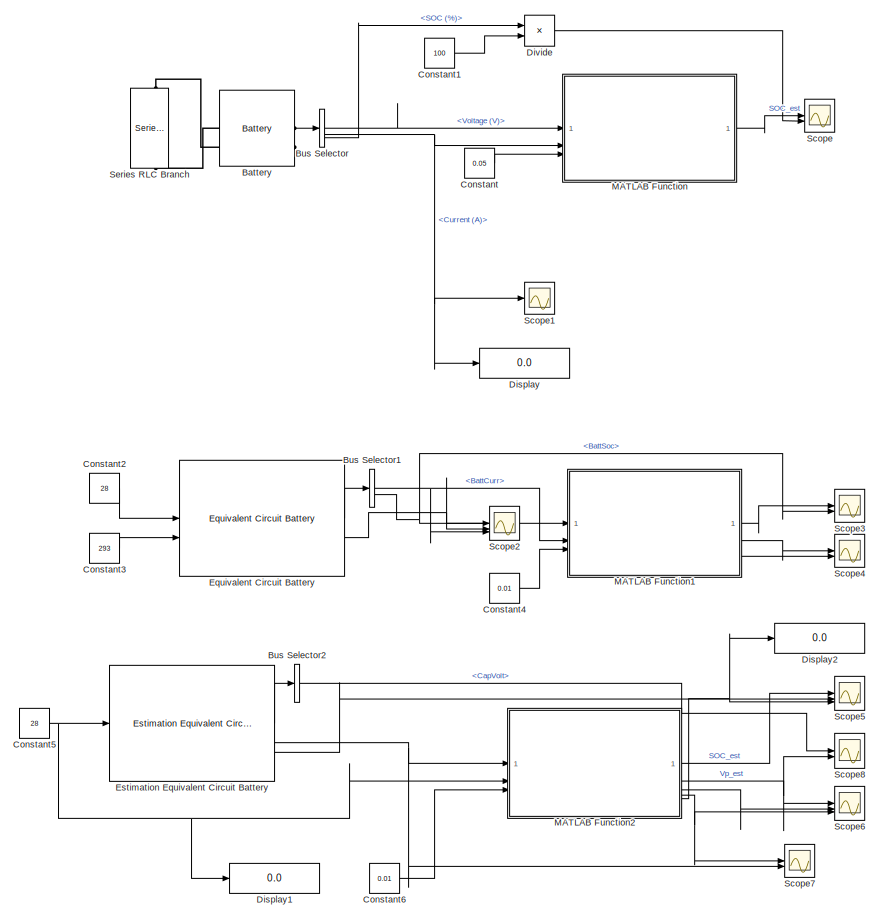
[diagram: root canvas - part 1/2, full width, top band]
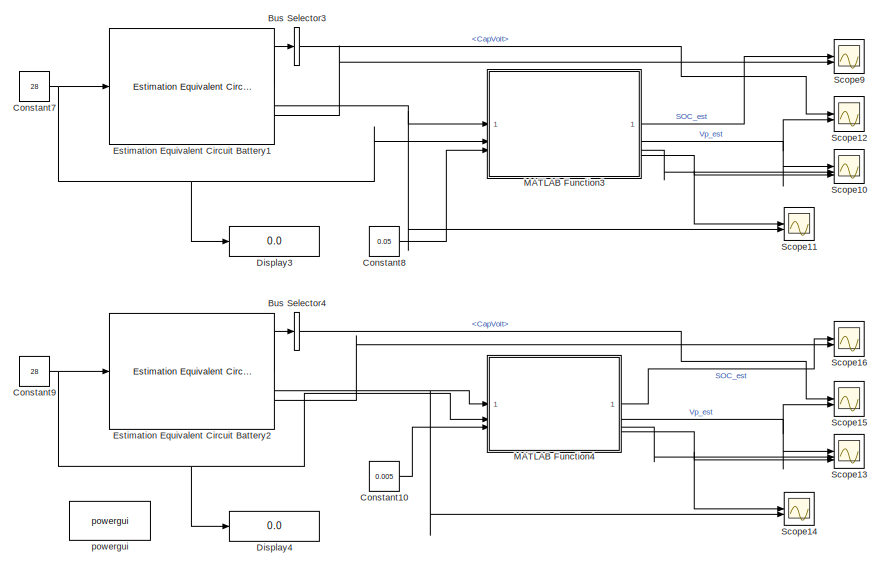
[diagram: root canvas - part 2/2, full width, bottom band]
MODEL slx_6ea71eb47ffe
KIND model
CONFIG AbsTol = auto
CONFIG EnableMultiTasking = off
CONFIG FixedStep = auto
CONFIG MaxStep = auto
CONFIG MinStep = auto
CONFIG RelTol = 1e-3
CONFIG SampleTimeConstraint = Unconstrained
CONFIG SolverName = FixedStepAuto
CONFIG StartTime = 0.0
CONFIG StopTime = 3600
BLOCK [Reference] Battery  REF=spsBatteryLib/Battery
  Commented = on
  LibrarySourceBlock = electricdrivelib/Extra Sources/Battery
  NameLocation = top
  SourceBlock = spsBatteryLib/Battery
  SourceType = Battery
BLOCK [BusSelector] Bus Selector
  Commented = on
  OutputSignals = Voltage (V),Current (A),SOC (%)
BLOCK [BusSelector] Bus Selector1
  Commented = on
  OutputSignals = BattCurr,BattSoc,BattVolt
BLOCK [BusSelector] Bus Selector2
  Commented = on
  OutputSignals = CapVolt
BLOCK [BusSelector] Bus Selector3
  Commented = on
  OutputSignals = CapVolt
BLOCK [BusSelector] Bus Selector4
  OutputSignals = CapVolt
BLOCK [Constant] Constant
  Commented = on
  Value = 0.05
BLOCK [Constant] Constant1
  Commented = on
  Value = 100
BLOCK [Constant] Constant10
  Value = 0.005
BLOCK [Constant] Constant2
  Commented = on
  Value = 28
BLOCK [Constant] Constant3
  Commented = on
  Value = 293
BLOCK [Constant] Constant4
  Commented = on
  Value = 0.01
BLOCK [Constant] Constant5
  Commented = on
  Value = 28
BLOCK [Constant] Constant6
  Commented = on
  Value = 0.01
BLOCK [Constant] Constant7
  Commented = on
  Value = 28
BLOCK [Constant] Constant8
  Commented = on
  Value = 0.05
BLOCK [Constant] Constant9
  Value = 28
BLOCK [Display] Display
  Commented = on
  Decimation = 1
BLOCK [Display] Display1
  Commented = on
  Decimation = 1
BLOCK [Display] Display2
  Commented = on
  Decimation = 1
BLOCK [Display] Display3
  Commented = on
  Decimation = 1
BLOCK [Display] Display4
  Decimation = 1
BLOCK [Product] Divide
  Commented = on
  Inputs = */
BLOCK [Reference] Equivalent Circuit Battery  REF=autolibrcnetworksystem/Equivalent Circuit Battery
  Commented = on
  SourceBlock = autolibrcnetworksystem/Equivalent Circuit Battery
  SourceType = Equivalent Circuit Battery
BLOCK [Reference] Estimation Equivalent Circuit Battery  REF=autolibrcnetworksystem/Estimation Equivalent Circuit Battery
  Commented = on
  SourceBlock = autolibrcnetworksystem/Estimation Equivalent Circuit Battery
  SourceType = Estimation Equivalent Circuit Battery
BLOCK [Reference] Estimation Equivalent Circuit Battery1  REF=autolibrcnetworksystem/Estimation Equivalent Circuit Battery
  Commented = on
  SourceBlock = autolibrcnetworksystem/Estimation Equivalent Circuit Battery
  SourceType = Estimation Equivalent Circuit Battery
BLOCK [Reference] Estimation Equivalent Circuit Battery2  REF=autolibrcnetworksystem/Estimation Equivalent Circuit Battery
  SourceBlock = autolibrcnetworksystem/Estimation Equivalent Circuit Battery
  SourceType = Estimation Equivalent Circuit Battery
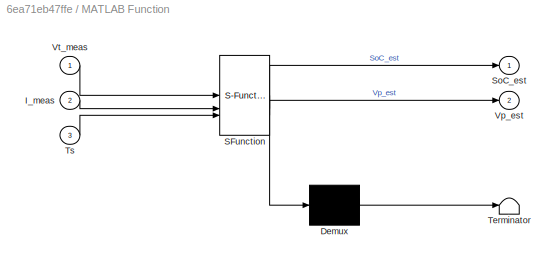
BLOCK [SubSystem] MATLAB Function
  Commented = on
  ErrorFcn = Stateflow.Translate.translate
  PermitHierarchicalResolution = ExplicitOnly
  SFBlockType = MATLAB Function
  TreatAsAtomicUnit = on
BLOCK [Demux] MATLAB Function/ Demux 
  Outputs = 1
BLOCK [S-Function] MATLAB Function/ SFunction 
  EnableBusSupport = off
  FunctionName = sf_sfun
  PortCounts = [3 3]
  SFcnIsStateOwnerBlock = off
  SFunctionDeploymentMode = off
  Tag = Stateflow S-Function 2
BLOCK [Terminator] MATLAB Function/ Terminator 
BLOCK [Inport] MATLAB Function/I_meas
  Port = 2
BLOCK [Outport] MATLAB Function/SoC_est
BLOCK [Inport] MATLAB Function/Ts
  Port = 3
BLOCK [Outport] MATLAB Function/Vp_est
  Port = 2
BLOCK [Inport] MATLAB Function/Vt_meas
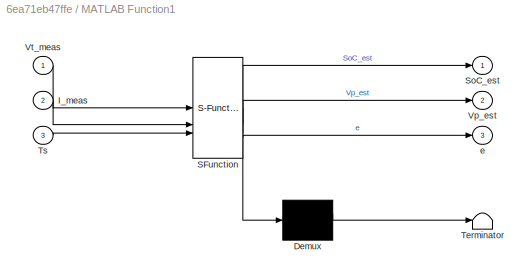
BLOCK [SubSystem] MATLAB Function1
  Commented = on
  ErrorFcn = Stateflow.Translate.translate
  PermitHierarchicalResolution = ExplicitOnly
  SFBlockType = MATLAB Function
  TreatAsAtomicUnit = on
BLOCK [Demux] MATLAB Function1/ Demux 
  Outputs = 1
BLOCK [S-Function] MATLAB Function1/ SFunction 
  EnableBusSupport = on
  FunctionName = sf_sfun
  PortCounts = [3 4]
  SFcnIsStateOwnerBlock = off
  SFunctionDeploymentMode = off
  Tag = Stateflow S-Function 1
BLOCK [Terminator] MATLAB Function1/ Terminator 
BLOCK [Inport] MATLAB Function1/I_meas
  Port = 2
BLOCK [Outport] MATLAB Function1/SoC_est
BLOCK [Inport] MATLAB Function1/Ts
  Port = 3
BLOCK [Outport] MATLAB Function1/Vp_est
  Port = 2
BLOCK [Inport] MATLAB Function1/Vt_meas
BLOCK [Outport] MATLAB Function1/e
  Port = 3
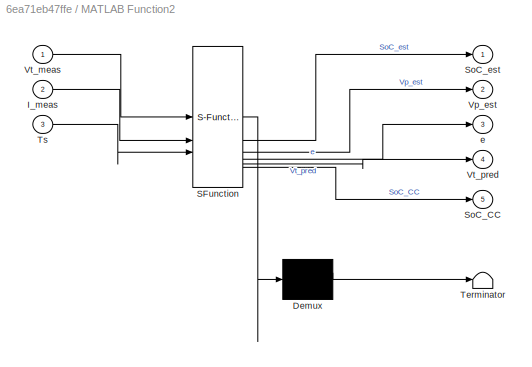
BLOCK [SubSystem] MATLAB Function2
  Commented = on
  ErrorFcn = Stateflow.Translate.translate
  PermitHierarchicalResolution = ExplicitOnly
  SFBlockType = MATLAB Function
  TreatAsAtomicUnit = on
BLOCK [Demux] MATLAB Function2/ Demux 
  Outputs = 1
BLOCK [S-Function] MATLAB Function2/ SFunction 
  EnableBusSupport = on
  FunctionName = sf_sfun
  PortCounts = [3 6]
  SFcnIsStateOwnerBlock = off
  SFunctionDeploymentMode = off
  Tag = Stateflow S-Function 3
BLOCK [Terminator] MATLAB Function2/ Terminator 
BLOCK [Inport] MATLAB Function2/I_meas
  Port = 2
BLOCK [Outport] MATLAB Function2/SoC_CC
  Port = 5
BLOCK [Outport] MATLAB Function2/SoC_est
BLOCK [Inport] MATLAB Function2/Ts
  Port = 3
BLOCK [Outport] MATLAB Function2/Vp_est
  Port = 2
BLOCK [Inport] MATLAB Function2/Vt_meas
BLOCK [Outport] MATLAB Function2/Vt_pred
  Port = 4
BLOCK [Outport] MATLAB Function2/e
  Port = 3
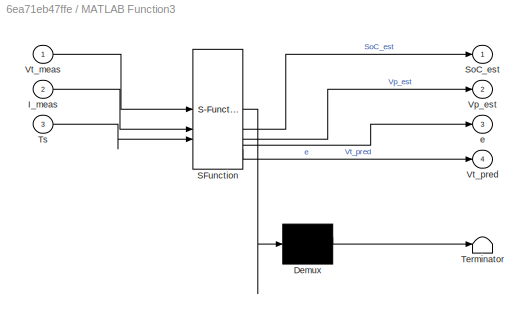
BLOCK [SubSystem] MATLAB Function3
  Commented = on
  ErrorFcn = Stateflow.Translate.translate
  PermitHierarchicalResolution = ExplicitOnly
  SFBlockType = MATLAB Function
  TreatAsAtomicUnit = on
BLOCK [Demux] MATLAB Function3/ Demux 
  Outputs = 1
BLOCK [S-Function] MATLAB Function3/ SFunction 
  EnableBusSupport = on
  FunctionName = sf_sfun
  PortCounts = [3 5]
  SFcnIsStateOwnerBlock = off
  SFunctionDeploymentMode = off
  Tag = Stateflow S-Function 4
BLOCK [Terminator] MATLAB Function3/ Terminator 
BLOCK [Inport] MATLAB Function3/I_meas
  Port = 2
BLOCK [Outport] MATLAB Function3/SoC_est
BLOCK [Inport] MATLAB Function3/Ts
  Port = 3
BLOCK [Outport] MATLAB Function3/Vp_est
  Port = 2
BLOCK [Inport] MATLAB Function3/Vt_meas
BLOCK [Outport] MATLAB Function3/Vt_pred
  Port = 4
BLOCK [Outport] MATLAB Function3/e
  Port = 3
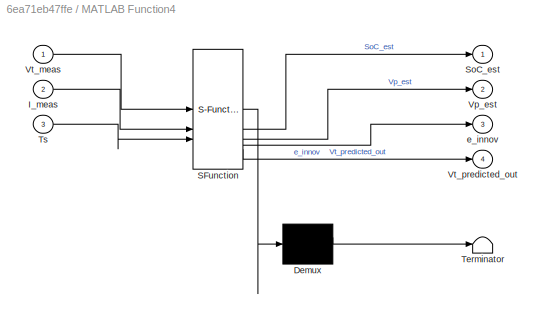
BLOCK [SubSystem] MATLAB Function4
  ErrorFcn = Stateflow.Translate.translate
  PermitHierarchicalResolution = ExplicitOnly
  SFBlockType = MATLAB Function
  TreatAsAtomicUnit = on
BLOCK [Demux] MATLAB Function4/ Demux 
  Outputs = 1
BLOCK [S-Function] MATLAB Function4/ SFunction 
  EnableBusSupport = on
  FunctionName = sf_sfun
  PortCounts = [3 5]
  SFcnIsStateOwnerBlock = off
  SFunctionDeploymentMode = off
  Tag = Stateflow S-Function 5
BLOCK [Terminator] MATLAB Function4/ Terminator 
BLOCK [Inport] MATLAB Function4/I_meas
  Port = 2
BLOCK [Outport] MATLAB Function4/SoC_est
BLOCK [Inport] MATLAB Function4/Ts
  Port = 3
BLOCK [Outport] MATLAB Function4/Vp_est
  Port = 2
BLOCK [Inport] MATLAB Function4/Vt_meas
BLOCK [Outport] MATLAB Function4/Vt_predicted_out
  Port = 4
BLOCK [Outport] MATLAB Function4/e_innov
  Port = 3
BLOCK [Scope] Scope
  Commented = on
  Floating = off
  NumInputPorts = 2
  ScopeSpecificationString = Simulink.scopes.TimeScopeBlockCfg('CurrentConfiguration', extmgr.ConfigurationSet(extmgr.Configuration('Core','General UI',true),extmgr.Configuration('Core','Source UI',true),extmgr.Configuration('Sources','WiredSimulink',true),extmgr.Configuration('Visuals','Time Domain',true,'SerializedDisplays',{struct('MinYLimReal','0.32635','MaxYLimReal','0.90818','YLabelReal','','MinYLimMag','0.32635','MaxYL...<+1370ch>
BLOCK [Scope] Scope1
  Commented = on
  Floating = off
  NumInputPorts = 1
  ScopeSpecificationString = Simulink.scopes.TimeScopeBlockCfg('CurrentConfiguration', extmgr.ConfigurationSet(extmgr.Configuration('Core','General UI',true),extmgr.Configuration('Core','Source UI',true),extmgr.Configuration('Sources','WiredSimulink',true,'DataLoggingVariableName','ScopeData1','DataLoggingSaveFormat','Array','DataLoggingLimitDataPoints',true,'DataLoggingDecimation','1'),extmgr.Configuration('Visuals','Time Do...<+1674ch>
BLOCK [Scope] Scope10
  Commented = on
  Floating = off
  NumInputPorts = 3
  ScopeSpecificationString = Simulink.scopes.TimeScopeBlockCfg('CurrentConfiguration', extmgr.ConfigurationSet(extmgr.Configuration('Core','General UI',true),extmgr.Configuration('Core','Source UI',true),extmgr.Configuration('Sources','WiredSimulink',true,'DataLoggingVariableName','ScopeData1'),extmgr.Configuration('Visuals','Time Domain',true,'SerializedDisplays',{struct('MinYLimReal','0.49045','MaxYLimReal','1.18538','YLabe...<+2739ch>
BLOCK [Scope] Scope11
  Commented = on
  Floating = off
  NumInputPorts = 2
  ScopeSpecificationString = Simulink.scopes.TimeScopeBlockCfg('CurrentConfiguration', extmgr.ConfigurationSet(extmgr.Configuration('Core','General UI',true),extmgr.Configuration('Core','Source UI',true),extmgr.Configuration('Sources','WiredSimulink',true,'DataLoggingVariableName','ScopeData2'),extmgr.Configuration('Visuals','Time Domain',true,'SerializedDisplays',{struct('MinYLimReal','3.21164','MaxYLimReal','4.11748','YLabe...<+1461ch>
BLOCK [Scope] Scope12
  Commented = on
  Floating = off
  NumInputPorts = 2
  ScopeSpecificationString = Simulink.scopes.TimeScopeBlockCfg('CurrentConfiguration', extmgr.ConfigurationSet(extmgr.Configuration('Core','General UI',true),extmgr.Configuration('Core','Source UI',true),extmgr.Configuration('Sources','WiredSimulink',true,'DataLoggingVariableName','ScopeData3'),extmgr.Configuration('Visuals','Time Domain',true,'SerializedDisplays',{struct('MinYLimReal','-0.39175','MaxYLimReal','2.12579','YLab...<+1413ch>
BLOCK [Scope] Scope13
  Floating = off
  NumInputPorts = 3
  ScopeSpecificationString = Simulink.scopes.TimeScopeBlockCfg('CurrentConfiguration', extmgr.ConfigurationSet(extmgr.Configuration('Core','General UI',true),extmgr.Configuration('Core','Source UI',true),extmgr.Configuration('Sources','WiredSimulink',true,'DataLoggingVariableName','ScopeData1'),extmgr.Configuration('Visuals','Time Domain',true,'SerializedDisplays',{struct('MinYLimReal','-0.0168','MaxYLimReal','1.04937','YLabe...<+2756ch>
BLOCK [Scope] Scope14
  Floating = off
  NumInputPorts = 2
  ScopeSpecificationString = Simulink.scopes.TimeScopeBlockCfg('CurrentConfiguration', extmgr.ConfigurationSet(extmgr.Configuration('Core','General UI',true),extmgr.Configuration('Core','Source UI',true),extmgr.Configuration('Sources','WiredSimulink',true,'DataLoggingVariableName','ScopeData2'),extmgr.Configuration('Visuals','Time Domain',true,'SerializedDisplays',{struct('MinYLimReal','2.07603','MaxYLimReal','4.86576','YLabe...<+1469ch>
BLOCK [Scope] Scope15
  Floating = off
  NumInputPorts = 2
  ScopeSpecificationString = Simulink.scopes.TimeScopeBlockCfg('CurrentConfiguration', extmgr.ConfigurationSet(extmgr.Configuration('Core','General UI',true),extmgr.Configuration('Core','Source UI',true),extmgr.Configuration('Sources','WiredSimulink',true,'DataLoggingVariableName','ScopeData3'),extmgr.Configuration('Visuals','Time Domain',true,'SerializedDisplays',{struct('MinYLimReal','-0.39175','MaxYLimReal','2.12579','YLab...<+1413ch>
BLOCK [Scope] Scope16
  Floating = off
  NumInputPorts = 2
  ScopeSpecificationString = Simulink.scopes.TimeScopeBlockCfg('CurrentConfiguration', extmgr.ConfigurationSet(extmgr.Configuration('Core','General UI',true),extmgr.Configuration('Core','Source UI',true),extmgr.Configuration('Sources','WiredSimulink',true,'DataLoggingVariableName','ScopeData4'),extmgr.Configuration('Visuals','Time Domain',true,'SerializedDisplays',{struct('MinYLimReal','-0.12475','MaxYLimReal','1.12497','YLab...<+1471ch>
BLOCK [Scope] Scope2
  Commented = on
  Floating = off
  NumInputPorts = 3
  ScopeSpecificationString = Simulink.scopes.TimeScopeBlockCfg('CurrentConfiguration', extmgr.ConfigurationSet(extmgr.Configuration('Core','General UI',true),extmgr.Configuration('Core','Source UI',true),extmgr.Configuration('Sources','WiredSimulink',true,'DataLoggingVariableName','ScopeData1'),extmgr.Configuration('Visuals','Time Domain',true,'SerializedDisplays',{struct('MinYLimReal','0.6875','MaxYLimReal','1.03472','YLabel...<+2797ch>
BLOCK [Scope] Scope3
  Commented = on
  Floating = off
  NumInputPorts = 2
  ScopeSpecificationString = Simulink.scopes.TimeScopeBlockCfg('CurrentConfiguration', extmgr.ConfigurationSet(extmgr.Configuration('Core','General UI',true),extmgr.Configuration('Core','Source UI',true),extmgr.Configuration('Sources','WiredSimulink',true,'DataLoggingVariableName','ScopeData2'),extmgr.Configuration('Visuals','Time Domain',true,'SerializedDisplays',{struct('MinYLimReal','-0.125','MaxYLimReal','1.125','YLabelRe...<+1419ch>
BLOCK [Scope] Scope4
  Commented = on
  Floating = off
  NumInputPorts = 2
  ScopeSpecificationString = Simulink.scopes.TimeScopeBlockCfg('CurrentConfiguration', extmgr.ConfigurationSet(extmgr.Configuration('Core','General UI',true),extmgr.Configuration('Core','Source UI',true),extmgr.Configuration('Sources','WiredSimulink',true,'DataLoggingVariableName','ScopeData1'),extmgr.Configuration('Visuals','Time Domain',true,'SerializedDisplays',{struct('MinYLimReal','0.61385','MaxYLimReal','0.9716','YLabel...<+2059ch>
BLOCK [Scope] Scope5
  Commented = on
  Floating = off
  NumInputPorts = 3
  ScopeSpecificationString = Simulink.scopes.TimeScopeBlockCfg('CurrentConfiguration', extmgr.ConfigurationSet(extmgr.Configuration('Core','General UI',true),extmgr.Configuration('Core','Source UI',true),extmgr.Configuration('Sources','WiredSimulink',true,'DataLoggingVariableName','ScopeData2'),extmgr.Configuration('Visuals','Time Domain',true,'SerializedDisplays',{struct('MinYLimReal','-0.125','MaxYLimReal','1.125','YLabelRe...<+1458ch>
BLOCK [Scope] Scope6
  Commented = on
  Floating = off
  NumInputPorts = 3
  ScopeSpecificationString = Simulink.scopes.TimeScopeBlockCfg('CurrentConfiguration', extmgr.ConfigurationSet(extmgr.Configuration('Core','General UI',true),extmgr.Configuration('Core','Source UI',true),extmgr.Configuration('Sources','WiredSimulink',true,'DataLoggingVariableName','ScopeData1'),extmgr.Configuration('Visuals','Time Domain',true,'SerializedDisplays',{struct('MinYLimReal','0.49045','MaxYLimReal','1.18538','YLabe...<+2739ch>
BLOCK [Scope] Scope7
  Commented = on
  Floating = off
  NumInputPorts = 2
  ScopeSpecificationString = Simulink.scopes.TimeScopeBlockCfg('CurrentConfiguration', extmgr.ConfigurationSet(extmgr.Configuration('Core','General UI',true),extmgr.Configuration('Core','Source UI',true),extmgr.Configuration('Sources','WiredSimulink',true,'DataLoggingVariableName','ScopeData2'),extmgr.Configuration('Visuals','Time Domain',true,'SerializedDisplays',{struct('MinYLimReal','3.21164','MaxYLimReal','4.11748','YLabe...<+1461ch>
BLOCK [Scope] Scope8
  Commented = on
  Floating = off
  NumInputPorts = 2
  ScopeSpecificationString = Simulink.scopes.TimeScopeBlockCfg('CurrentConfiguration', extmgr.ConfigurationSet(extmgr.Configuration('Core','General UI',true),extmgr.Configuration('Core','Source UI',true),extmgr.Configuration('Sources','WiredSimulink',true,'DataLoggingVariableName','ScopeData1'),extmgr.Configuration('Visuals','Time Domain',true,'SerializedDisplays',{struct('MinYLimReal','-0.39175','MaxYLimReal','2.12579','YLab...<+1413ch>
BLOCK [Scope] Scope9
  Commented = on
  Floating = off
  NumInputPorts = 3
  ScopeSpecificationString = Simulink.scopes.TimeScopeBlockCfg('CurrentConfiguration', extmgr.ConfigurationSet(extmgr.Configuration('Core','General UI',true),extmgr.Configuration('Core','Source UI',true),extmgr.Configuration('Sources','WiredSimulink',true,'DataLoggingVariableName','ScopeData4'),extmgr.Configuration('Visuals','Time Domain',true,'SerializedDisplays',{struct('MinYLimReal','-0.125','MaxYLimReal','1.125','YLabelRe...<+1445ch>
BLOCK [Reference] Series RLC Branch  REF=spsSeriesRLCBranchLib/Series RLC Branch
  Commented = on
  LibrarySourceBlock = sps_lib/Passives/Series RLC Branch
  NameLocation = right
  SourceBlock = spsSeriesRLCBranchLib/Series RLC Branch
  SourceType = Series RLC Branch
BLOCK [Reference] powergui  REF=spspowerguiLib/powergui
  LibrarySourceBlock = sps_lib/powergui
  Priority = 1
  SourceBlock = spspowerguiLib/powergui
  SourceType = PSB option menu block
LINE Battery:1 -> Bus Selector:1
NET Bus Selector1:1 -> MATLAB Function1:2, Scope2:3
NET Bus Selector1:2 -> Scope2:1, Scope3:2
LINE Bus Selector2:1 -> Scope8:1
LINE Bus Selector3:1 -> Scope12:1
LINE Bus Selector4:1 -> Scope15:1
LINE Bus Selector:1 -> MATLAB Function:1
NET Bus Selector:2 -> Display:1, MATLAB Function:2, Scope1:1
LINE Bus Selector:3 -> Divide:1
LINE Constant10:1 -> MATLAB Function4:3
LINE Constant1:1 -> Divide:2
LINE Constant2:1 -> Equivalent Circuit Battery:1
LINE Constant3:1 -> Equivalent Circuit Battery:2
LINE Constant4:1 -> MATLAB Function1:3
NET Constant5:1 -> Display1:1, Estimation Equivalent Circuit Battery:1, MATLAB Function2:2
LINE Constant6:1 -> MATLAB Function2:3
NET Constant7:1 -> Display3:1, Estimation Equivalent Circuit Battery1:1, MATLAB Function3:2
LINE Constant8:1 -> MATLAB Function3:3
NET Constant9:1 -> Display4:1, Estimation Equivalent Circuit Battery2:1, MATLAB Function4:2
LINE Constant:1 -> MATLAB Function:3
LINE Divide:1 -> Scope:2
LINE Equivalent Circuit Battery:1 -> Bus Selector1:1
NET Equivalent Circuit Battery:2 -> MATLAB Function1:1, Scope2:2
LINE Estimation Equivalent Circuit Battery1:1 -> Bus Selector3:1
NET Estimation Equivalent Circuit Battery1:2 -> MATLAB Function3:1, Scope11:2
LINE Estimation Equivalent Circuit Battery1:3 -> Scope9:2
LINE Estimation Equivalent Circuit Battery2:1 -> Bus Selector4:1
NET Estimation Equivalent Circuit Battery2:2 -> MATLAB Function4:1, Scope14:2
LINE Estimation Equivalent Circuit Battery2:3 -> Scope16:2
LINE Estimation Equivalent Circuit Battery:1 -> Bus Selector2:1
NET Estimation Equivalent Circuit Battery:2 -> MATLAB Function2:1, Scope7:2
LINE Estimation Equivalent Circuit Battery:3 -> Scope5:2
LINE MATLAB Function1:1 -> Scope3:1
LINE MATLAB Function1:2 -> Scope4:1
LINE MATLAB Function1:3 -> Scope4:2
LINE MATLAB Function2:1 -> Scope5:1
NET MATLAB Function2:2 -> Scope6:1, Scope8:2
LINE MATLAB Function2:3 -> Scope6:2
NET MATLAB Function2:4 -> Scope6:3, Scope7:1
NET MATLAB Function2:5 -> Display2:1, Scope5:3
LINE MATLAB Function3:1 -> Scope9:1
NET MATLAB Function3:2 -> Scope10:1, Scope12:2
LINE MATLAB Function3:3 -> Scope10:2
NET MATLAB Function3:4 -> Scope10:3, Scope11:1
LINE MATLAB Function4:1 -> Scope16:1
NET MATLAB Function4:2 -> Scope13:1, Scope15:2
LINE MATLAB Function4:3 -> Scope13:2
NET MATLAB Function4:4 -> Scope13:3, Scope14:1
LINE MATLAB Function:1 -> Scope:1
PLINE Battery:LConn1 -- Series RLC Branch:LConn1
PLINE Battery:LConn2 -- Series RLC Branch:RConn1
note: NET lines group one-source signal fan-out (src -> all destinations, sorted); 1:1 wires keep LINE
CHART MATLAB Function1 states=1 transitions=1
  STATE_LABEL 'eML_blk_kernel()'
  STATE_LABEL 'SCRIPT:\nfunction [SoC_est, Vp_est, e] = EKF_SOC_Estimator(Vt_meas, I_meas, Ts)\n\n% ---------------------------- Persistent Variables ----------------------------\npersistent x P Q R\npersistent SoC_vec Em_chg Em_dis R0_chg R0_dis R1_chg R1_dis C1_table_chg C1_table_dis\npersistent BattCapInit initialized\n\nif isempty(initialized)\n    initialized = true;\n\n    % 11-point SoC vector (even spacing)\n    SoC...<+3528ch>'
CHART MATLAB Function states=1 transitions=1
  STATE_LABEL 'eML_blk_kernel()'
  STATE_LABEL 'SCRIPT:\nfunction [SoC_est, Vp_est] = EKF_SOC_Estimator(Vt_meas, I_meas, Ts)\n\n% --- Persistent variables to retain state across time steps ---\npersistent x P Q R A B C D Voc0 dVoc C_nom Rp Cp\n\nif isempty(x)\n    % Initial state: SoC (0.85) and Vp (0 V)\n    x = [0.85; 0];  % [SoC; Vp]\n\n    % Covariance matrix (uncertainty in initial estimate)\n    P = 1e-2 * eye(2);\n\n    % Process noise covariance (un...<+1527ch>'
CHART MATLAB Function2 states=1 transitions=1
  STATE_LABEL 'eML_blk_kernel()'
  STATE_LABEL 'SCRIPT:\nfunction [SoC_est, Vp_est, e, Vt_pred, SoC_CC] = EKF_SOC_Estimator(Vt_meas, I_meas, Ts)\n\n% --- Persistent variables to retain state across time steps ---\npersistent x P Q R C_k SOC_vec Em Rt Rp Cp C_nom initialized SoC_CC_prev\n\nif isempty(initialized)\n    initialized = true;\n\n    % Initial SoC\n    SOC_init = 1.0;\n\n    % OCV-SOC table (from battery block)\n    SOC_vec = [0 0.2 0.4 0.6 0.8 1]...<+1991ch>'
CHART MATLAB Function3 states=1 transitions=1
  STATE_LABEL 'eML_blk_kernel()'
  STATE_LABEL 'SCRIPT:\nfunction [SoC_est, Vp_est, e, Vt_pred] = EKF_SOC_Estimator(Vt_meas, I_meas, Ts)\n\n% --- Persistent variables to retain state across time steps ---\npersistent x P Q R C_k SOC_vec Em Rt Rp Cp C_nom initialized\n\nif isempty(initialized)\n    initialized = true;\n\n    % Initial battery state\n    SOC_init = 1.0;\n\n    % OCV-SOC curve from battery model\n    SOC_vec = [0 0.2 0.4 0.6 0.8 1];           ...<+1587ch>'
CHART MATLAB Function4 states=1 transitions=1
  STATE_LABEL 'eML_blk_kernel()'
  STATE_LABEL 'SCRIPT:\nfunction [SoC_est, Vp_est, e_innov, Vt_predicted_out] = EKF_SOC_Estimator(Vt_meas, I_meas, Ts)\n% EKF_SOC_Estimator estimates State of Charge (SOC) and polarization voltage (Vp)\n% for a battery using an Extended Kalman Filter.\n%\n% Inputs:\n%   Vt_meas: Measured terminal voltage [V]\n%   I_meas:  Measured current [A] (positive for discharge, negative for charge)\n%   Ts:      Sample time [s]\n%\n...<+3608ch>'
CHART  states=0 transitions=0
CHART  states=0 transitions=0
CHART  states=0 transitions=0
CHART  states=0 transitions=0
CHART  states=0 transitions=0
